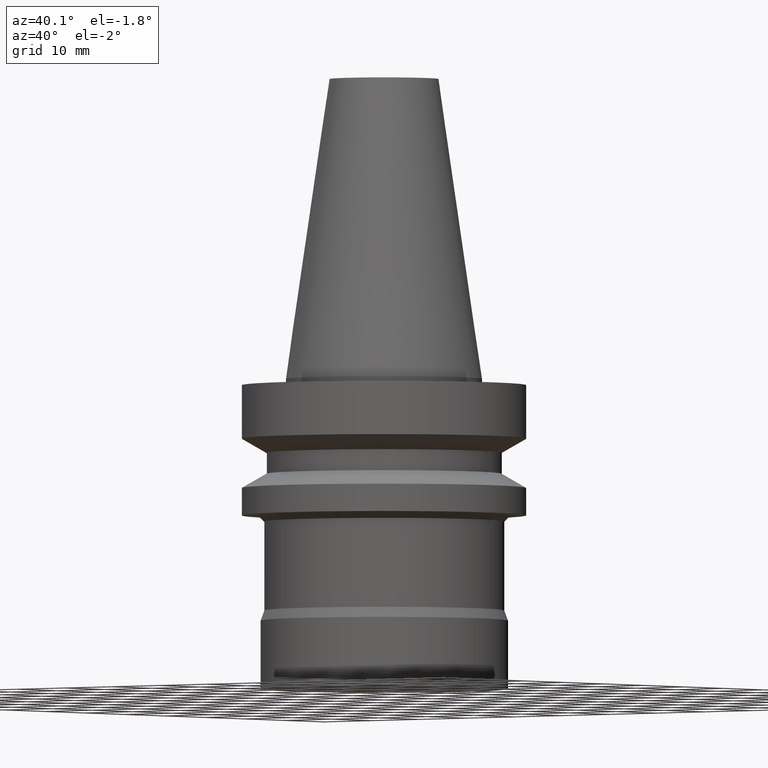
[diagram: clean part render]
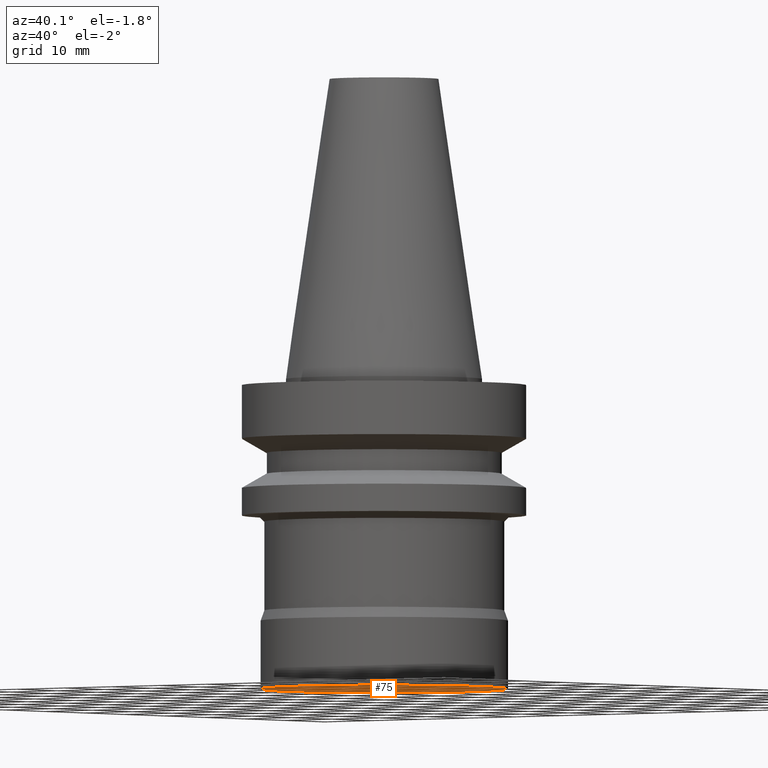
[diagram: same view with one face highlighted and labeled with its STEP entity id]
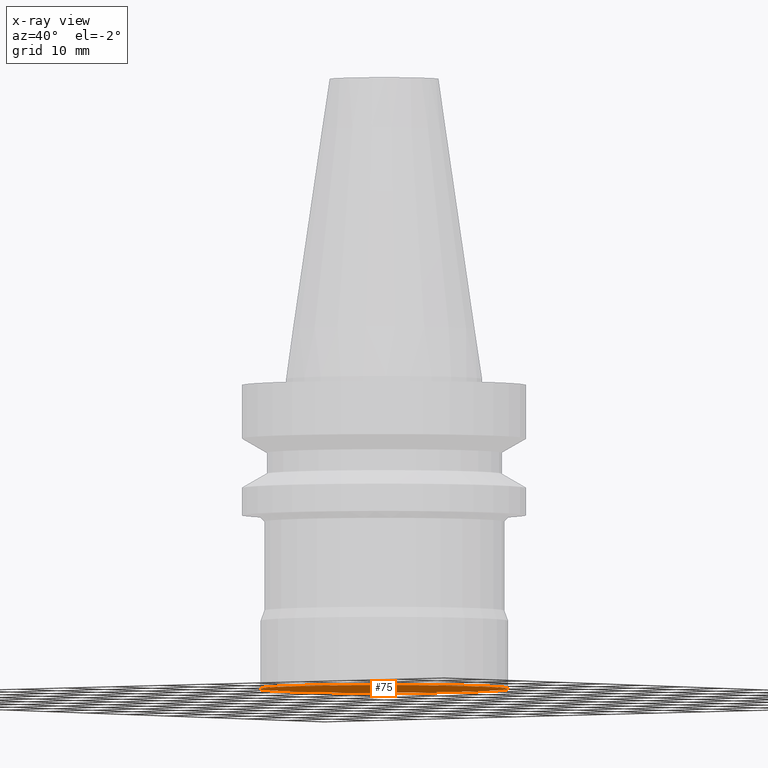
[diagram: x-ray of the same camera — body ghosted, the highlighted face saturated]
A machine part, auxiliary view. The second image highlights one B-rep face of the part: STEP entity #75.
The next image is the same camera in x-ray: the body ghosted, the highlighted face saturated — about 0% of this face is hidden behind the body in this view.
In plain terms, the highlighted planar face has unit normal (0, 0, -1).
Its self-contained STEP definition (entity closure, byte-faithful):
#75=ADVANCED_FACE('',(#91),#92,.T.);
#91=FACE_OUTER_BOUND('',#134,.T.);
#92=PLANE('',#135);
#134=EDGE_LOOP('',(#177));
#135=AXIS2_PLACEMENT_3D('',#178,#179,#180);
#177=ORIENTED_EDGE('',*,*,#250,.T.);
#178=CARTESIAN_POINT('',(3.06161699786838E-015,10.0,-50.0));
#179=DIRECTION('',(6.12323399573677E-017,1.22464679914735E-016,-1.0));
#180=DIRECTION('',(-1.23259516440783E-032,1.0,1.22464679914735E-016));
#250=EDGE_CURVE('',#264,#264,#265,.T.);
#264=VERTEX_POINT('',#292);
#265=CIRCLE('',#293,20.0);
#292=CARTESIAN_POINT('',(3.06161699786838E-015,20.0,-50.0));
#293=AXIS2_PLACEMENT_3D('',#320,#321,#322);
#320=CARTESIAN_POINT('',(3.06161699786838E-015,6.12323399573676E-015,-50.0));
#321=DIRECTION('',(6.12323399573677E-017,1.22464679914735E-016,-1.0));
#322=DIRECTION('',(-1.23259516440783E-032,1.0,1.22464679914735E-016));